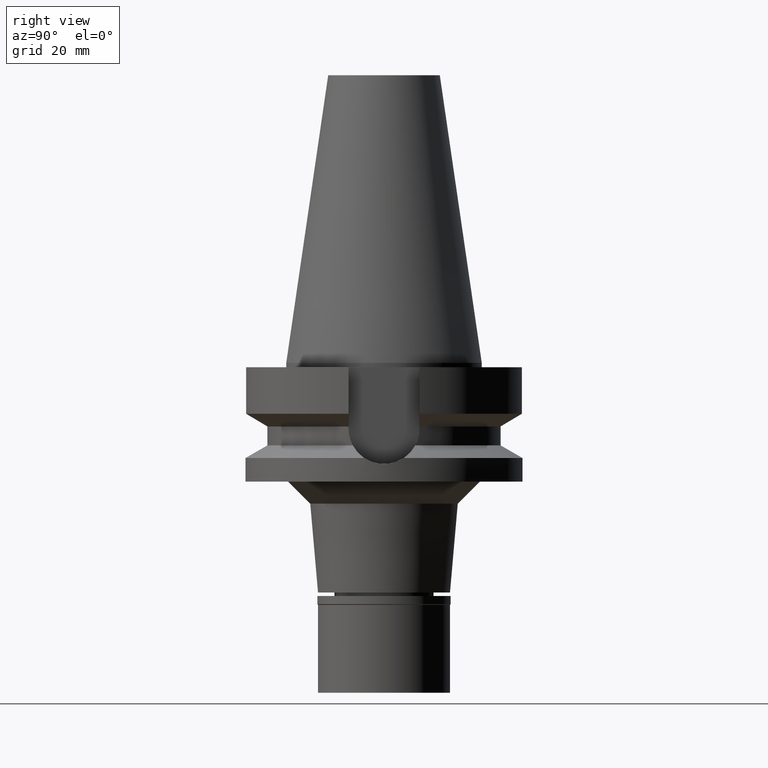
[diagram: clean part render]
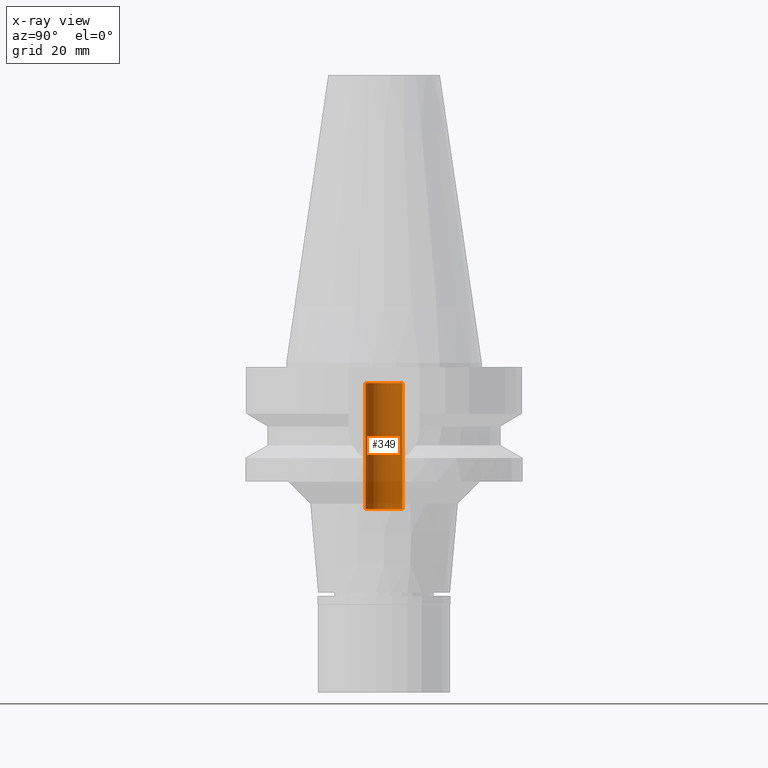
[diagram: x-ray — body ghosted, one internal face saturated and labeled with its STEP entity id]
A machine part, right view, then the same camera in x-ray: the body is ghosted and one INTERNAL B-rep face — a face not visible from any outside direction — is saturated and labeled: STEP entity #349.
In plain terms, the highlighted cylindrical surface (edge-blend (fillet) strip) has radius 4.2 mm, axis along (0, 0, -1).
Its self-contained STEP definition (entity closure, byte-faithful):
#91 = DIRECTION ( 'NONE',  ( 0.0000000000000000000, 0.0000000000000000000, 1.000000000000000000 ) ) ;
#239 = EDGE_CURVE ( 'NONE', #2283, #1646, #2395, .T. ) ;
#272 = VERTEX_POINT ( 'NONE', #1639 ) ;
#349 = ADVANCED_FACE ( 'NONE', ( #2150 ), #2620, .F. ) ;
#367 = CIRCLE ( 'NONE', #516, 4.200000000000000178 ) ;
#516 = AXIS2_PLACEMENT_3D ( 'NONE', #1694, #1922, #2683 ) ;
#528 = CARTESIAN_POINT ( 'NONE',  ( 0.0000000000000000000, -4.200000000000000178, -33.30000000000000426 ) ) ;
#579 = CARTESIAN_POINT ( 'NONE',  ( 0.0000000000000000000, 4.200000000000000178, -33.30000000000000426 ) ) ;
#617 = VERTEX_POINT ( 'NONE', #3010 ) ;
#764 = LINE ( 'NONE', #528, #1833 ) ;
#878 = VECTOR ( 'NONE', #91, 1000.000000000000000 ) ;
#928 = EDGE_CURVE ( 'NONE', #617, #1646, #764, .T. ) ;
#955 = DIRECTION ( 'NONE',  ( 0.0000000000000000000, 0.0000000000000000000, -1.000000000000000000 ) ) ;
#1073 = ORIENTED_EDGE ( 'NONE', *, *, #2406, .T. ) ;
#1309 = CARTESIAN_POINT ( 'NONE',  ( 0.0000000000000000000, 2.107433444312999912E-14, -4.599999999999999645 ) ) ;
#1343 = DIRECTION ( 'NONE',  ( 0.0000000000000000000, 0.0000000000000000000, 1.000000000000000000 ) ) ;
#1556 = EDGE_LOOP ( 'NONE', ( #2766, #2513, #1073, #1919 ) ) ;
#1572 = DIRECTION ( 'NONE',  ( 0.0000000000000000000, 1.000000000000000000, 0.0000000000000000000 ) ) ;
#1639 = CARTESIAN_POINT ( 'NONE',  ( 0.0000000000000000000, 4.200000000000000178, -33.30000000000000426 ) ) ;
#1646 = VERTEX_POINT ( 'NONE', #2159 ) ;
#1694 = CARTESIAN_POINT ( 'NONE',  ( 0.0000000000000000000, 2.107433444312999912E-14, -33.30000000000000426 ) ) ;
#1735 = AXIS2_PLACEMENT_3D ( 'NONE', #1309, #1343, #1572 ) ;
#1833 = VECTOR ( 'NONE', #2881, 1000.000000000000000 ) ;
#1919 = ORIENTED_EDGE ( 'NONE', *, *, #3026, .T. ) ;
#1922 = DIRECTION ( 'NONE',  ( 0.0000000000000000000, 0.0000000000000000000, -1.000000000000000000 ) ) ;
#2117 = DIRECTION ( 'NONE',  ( 0.0000000000000000000, -1.000000000000000000, 0.0000000000000000000 ) ) ;
#2129 = CARTESIAN_POINT ( 'NONE',  ( 0.0000000000000000000, 2.107433444312999912E-14, 72.08499999999999375 ) ) ;
#2150 = FACE_OUTER_BOUND ( 'NONE', #1556, .T. ) ;
#2159 = CARTESIAN_POINT ( 'NONE',  ( 0.0000000000000000000, -4.200000000000000178, -4.599999999999999645 ) ) ;
#2283 = VERTEX_POINT ( 'NONE', #2366 ) ;
#2366 = CARTESIAN_POINT ( 'NONE',  ( 0.0000000000000000000, 4.200000000000000178, -4.599999999999999645 ) ) ;
#2395 = CIRCLE ( 'NONE', #1735, 4.200000000000000178 ) ;
#2406 = EDGE_CURVE ( 'NONE', #617, #272, #367, .T. ) ;
#2513 = ORIENTED_EDGE ( 'NONE', *, *, #928, .F. ) ;
#2515 = LINE ( 'NONE', #579, #878 ) ;
#2620 = CYLINDRICAL_SURFACE ( 'NONE', #3051, 4.200000000000000178 ) ;
#2683 = DIRECTION ( 'NONE',  ( 0.0000000000000000000, -1.000000000000000000, 0.0000000000000000000 ) ) ;
#2766 = ORIENTED_EDGE ( 'NONE', *, *, #239, .T. ) ;
#2881 = DIRECTION ( 'NONE',  ( 0.0000000000000000000, 0.0000000000000000000, 1.000000000000000000 ) ) ;
#3010 = CARTESIAN_POINT ( 'NONE',  ( 0.0000000000000000000, -4.200000000000000178, -33.30000000000000426 ) ) ;
#3026 = EDGE_CURVE ( 'NONE', #272, #2283, #2515, .T. ) ;
#3051 = AXIS2_PLACEMENT_3D ( 'NONE', #2129, #955, #2117 ) ;